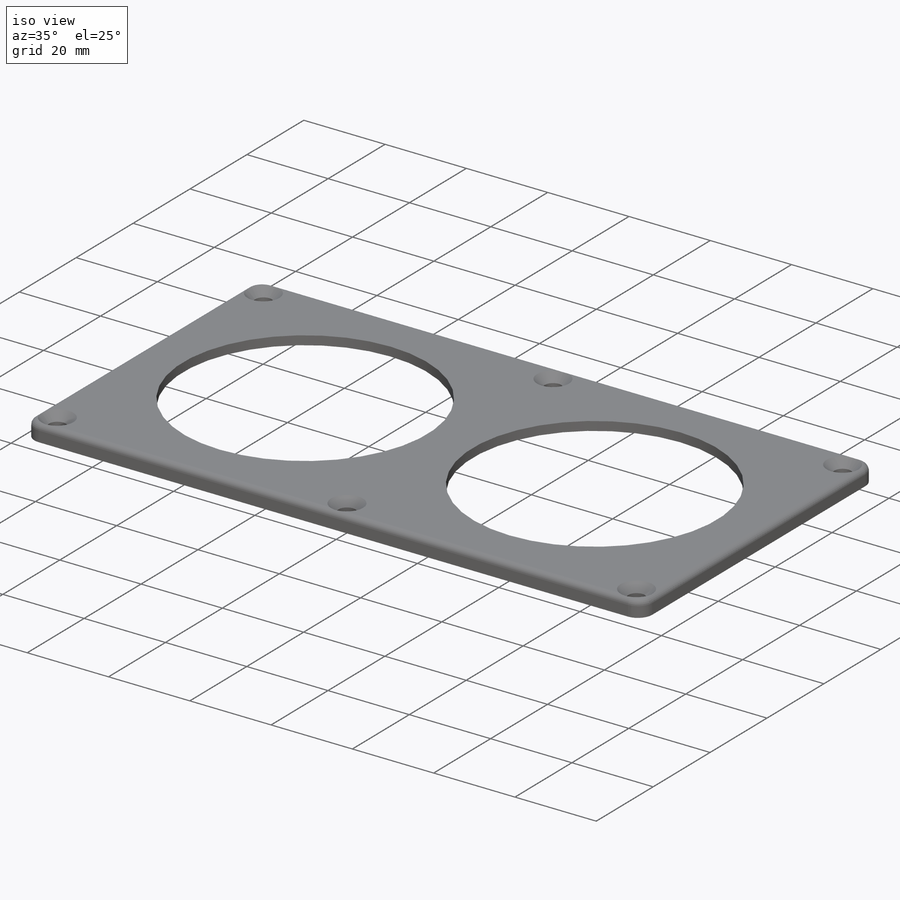
[diagram: iso view]
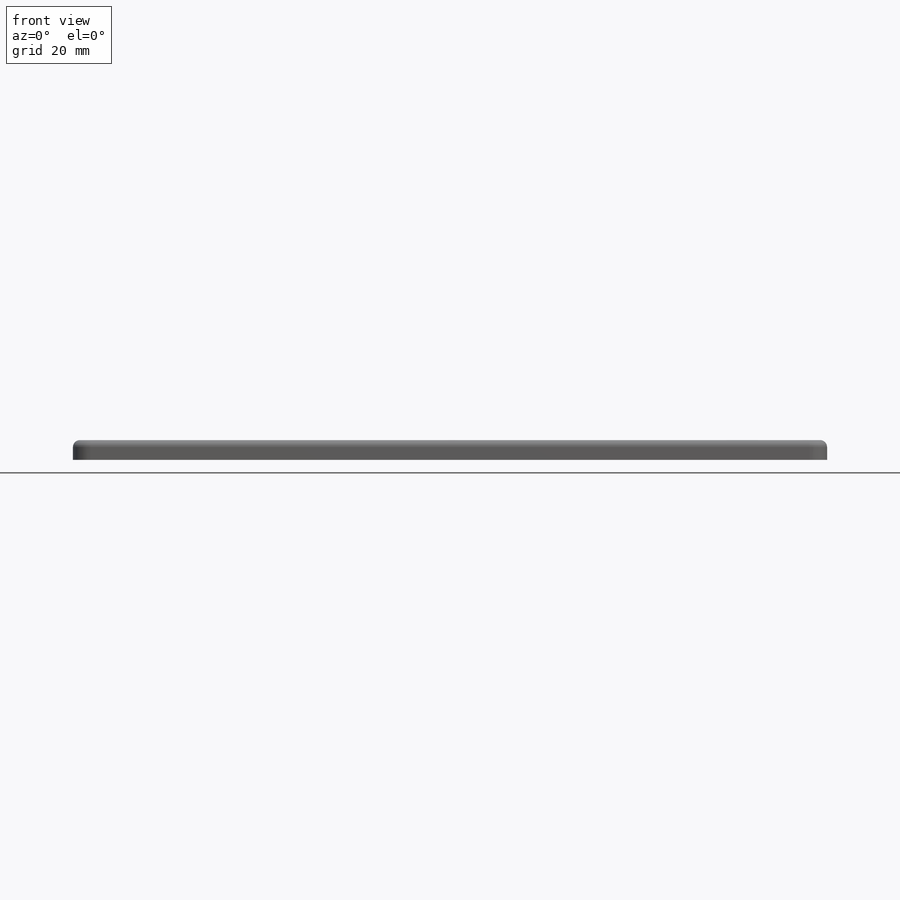
[diagram: front view]
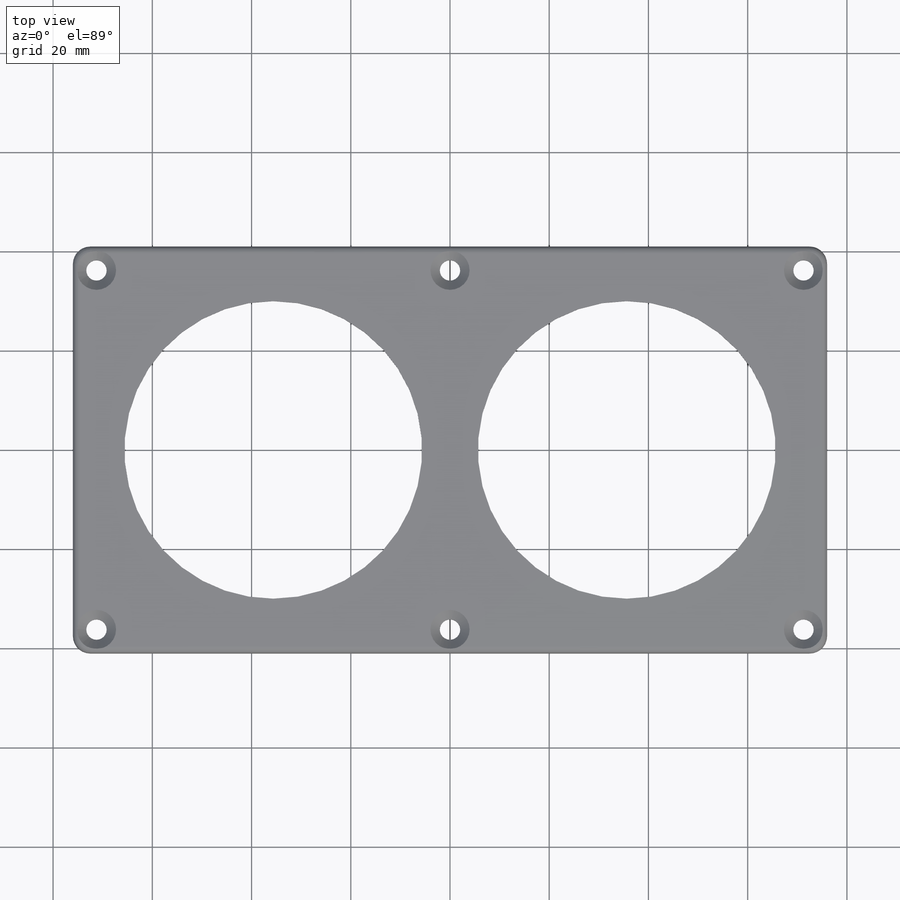
[diagram: top view]
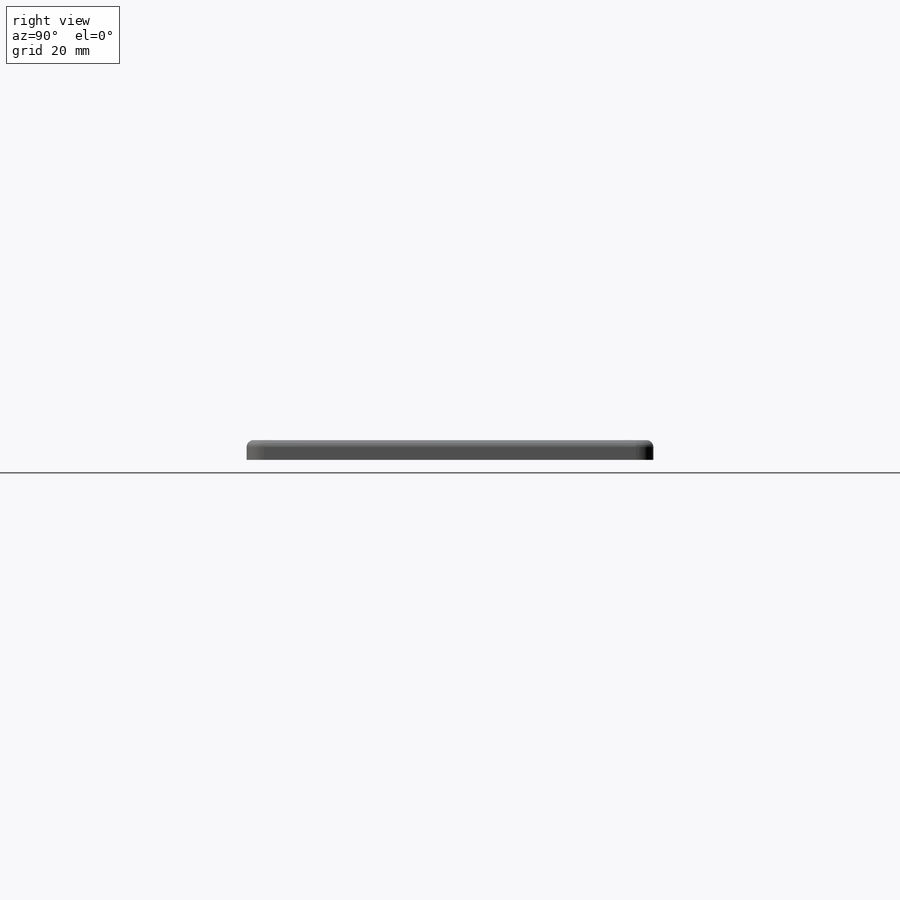
[diagram: right view]
SOLIDWORKS PART (.sldprt)
format: sldprt  version: not decoded by parser v0  size: 302,080 bytes
history: native  units: mm
features: sketch x4, cut_extrude x2, material x1, extrude x1, fillet x1, chamfer x1 (+12 scaffold rows collapsed)
feature tree (22):
  scaffold x12  (default folders/planes/origin — collapsed)
  material  "Material <not specified>"
  sketch  "Sketch1"  dims[D5=4.1mm D6=3.5mm D1=152.0mm D2=82.0mm D3=72.4mm D4=142.5mm]
  extrude  "Boss-Extrude1"  Depth=4mm
  fillet  "Fillet1"  Radius=1.4mm
  chamfer  "Chamfer1"  Distance=1.9mm Angle=45deg
  sketch  "Sketch2"  dims[D1=0.8mm]
  cut_extrude  "Cut-Extrude1"  Depth=1.8mm
  sketch  "Sketch3"
  sketch  "Sketch4"  dims[D3=60.0mm D4=3.95mm D1=35.625mm D2=35.625mm]
  cut_extrude  "Cut-Extrude2"  [1 undecoded]
decode coverage: 7 of 9 modeling features carry decoded parameters
note: 1 parameter value undecoded
note: suppression state not decoded; provenance and decode notes live in map.json
